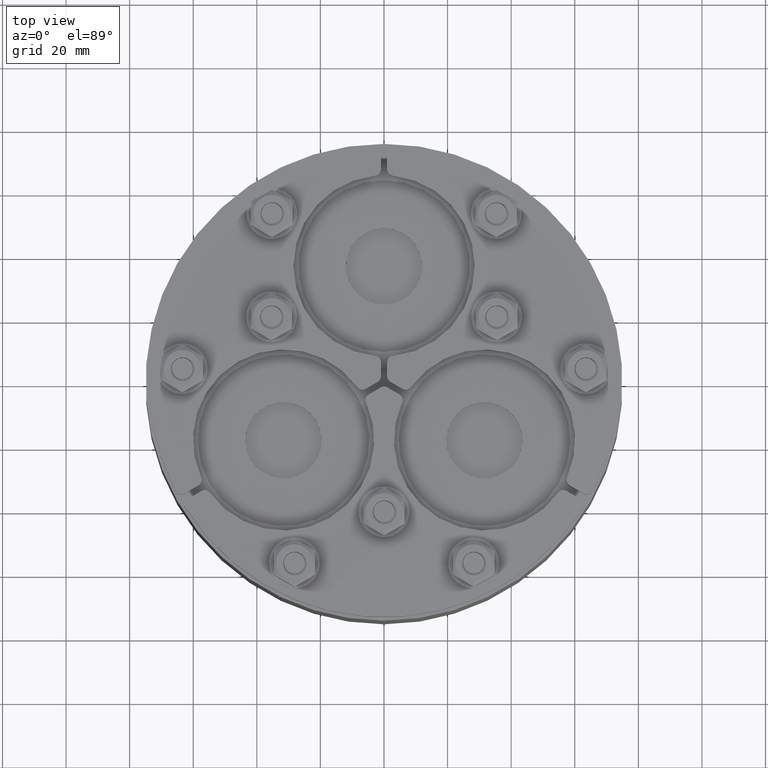
[diagram: clean part render]
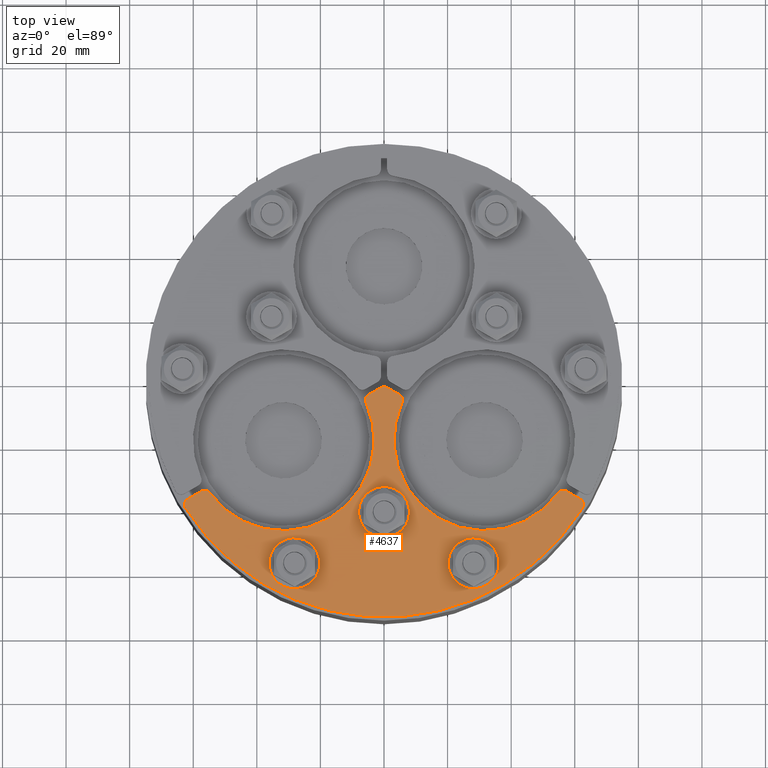
[diagram: same view with one face highlighted and labeled with its STEP entity id]
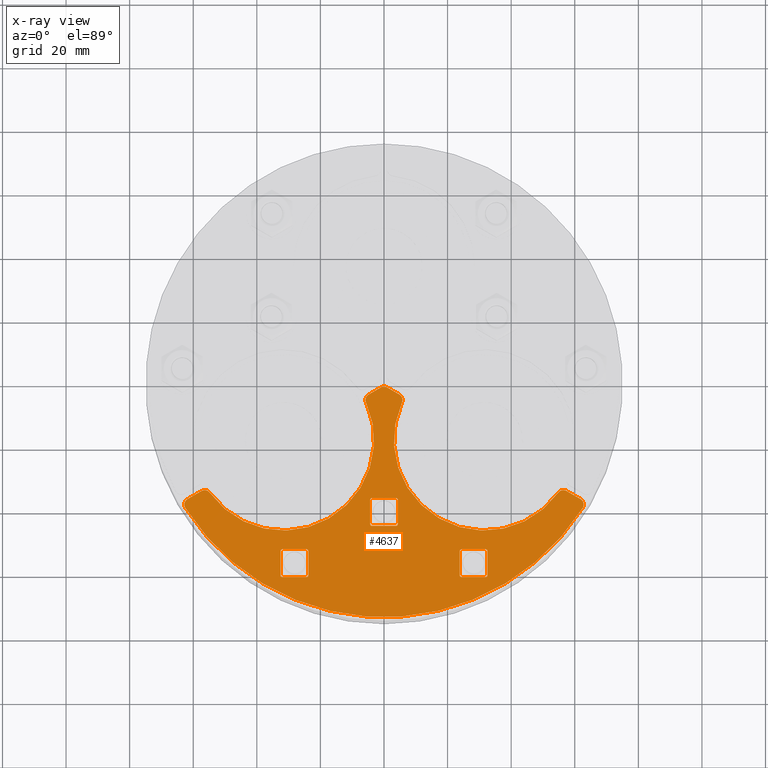
[diagram: x-ray of the same camera — body ghosted, the highlighted face saturated]
A machine part, top view. The second image highlights one B-rep face of the part: STEP entity #4637.
The next image is the same camera in x-ray: the body ghosted, the highlighted face saturated — about 0% of this face is hidden behind the body in this view.
In plain terms, the highlighted planar face has unit normal (0, 0, 1).
Its self-contained STEP definition (entity closure, byte-faithful):
#3328=CARTESIAN_POINT('',(32.029327736417869,-61.366536972386811,5.0));
#3329=VERTEX_POINT('',#3328);
#3336=CARTESIAN_POINT('',(32.529327736417855,-60.866536972386811,5.0));
#3337=VERTEX_POINT('',#3336);
#3338=CARTESIAN_POINT('',(32.029327736417876,-60.866536972386804,5.0));
#3339=DIRECTION('',(0.0,0.0,-1.0));
#3340=DIRECTION('',(0.0,-1.0,0.0));
#3341=AXIS2_PLACEMENT_3D('',#3338,#3339,#3340);
#3342=CIRCLE('',#3341,0.499999999999998);
#3343=EDGE_CURVE('',#3337,#3329,#3342,.T.);
#3368=CARTESIAN_POINT('',(32.529327736417855,-53.166536972386808,5.0));
#3369=VERTEX_POINT('',#3368);
#3370=CARTESIAN_POINT('',(32.529327736417855,-53.166536972386808,5.0));
#3371=DIRECTION('',(0.0,-1.0,0.0));
#3372=VECTOR('',#3371,7.700000000000003);
#3373=LINE('',#3370,#3372);
#3374=EDGE_CURVE('',#3369,#3337,#3373,.T.);
#3400=CARTESIAN_POINT('',(32.029327736417869,-52.666536972386801,5.0));
#3401=VERTEX_POINT('',#3400);
#3402=CARTESIAN_POINT('',(32.029327736417876,-53.166536972386808,5.0));
#3403=DIRECTION('',(0.0,0.0,-1.0));
#3404=DIRECTION('',(1.0,0.0,0.0));
#3405=AXIS2_PLACEMENT_3D('',#3402,#3403,#3404);
#3406=CIRCLE('',#3405,0.499999999999998);
#3407=EDGE_CURVE('',#3401,#3369,#3406,.T.);
#3432=CARTESIAN_POINT('',(24.329327736417849,-52.666536972386808,5.0));
#3433=VERTEX_POINT('',#3432);
#3434=CARTESIAN_POINT('',(24.329327736417852,-52.666536972386808,5.0));
#3435=DIRECTION('',(1.0,0.0,0.0));
#3436=VECTOR('',#3435,7.700000000000017);
#3437=LINE('',#3434,#3436);
#3438=EDGE_CURVE('',#3433,#3401,#3437,.T.);
#3464=CARTESIAN_POINT('',(23.82932773641787,-53.166536972386808,5.0));
#3465=VERTEX_POINT('',#3464);
#3466=CARTESIAN_POINT('',(24.329327736417849,-53.166536972386808,5.0));
#3467=DIRECTION('',(0.0,0.0,-1.0));
#3468=DIRECTION('',(0.0,1.0,0.0));
#3469=AXIS2_PLACEMENT_3D('',#3466,#3467,#3468);
#3470=CIRCLE('',#3469,0.499999999999998);
#3471=EDGE_CURVE('',#3465,#3433,#3470,.T.);
#3496=CARTESIAN_POINT('',(23.829327736417866,-60.866536972386811,5.0));
#3497=VERTEX_POINT('',#3496);
#3498=CARTESIAN_POINT('',(23.829327736417866,-60.866536972386811,5.0));
#3499=DIRECTION('',(0.0,1.0,0.0));
#3500=VECTOR('',#3499,7.700000000000003);
#3501=LINE('',#3498,#3500);
#3502=EDGE_CURVE('',#3497,#3465,#3501,.T.);
#3528=CARTESIAN_POINT('',(24.329327736417849,-61.366536972386797,5.0));
#3529=VERTEX_POINT('',#3528);
#3530=CARTESIAN_POINT('',(24.329327736417845,-60.866536972386797,5.0));
#3531=DIRECTION('',(0.0,0.0,-1.0));
#3532=DIRECTION('',(-1.0,0.0,0.0));
#3533=AXIS2_PLACEMENT_3D('',#3530,#3531,#3532);
#3534=CIRCLE('',#3533,0.499999999999998);
#3535=EDGE_CURVE('',#3529,#3497,#3534,.T.);
#3558=CARTESIAN_POINT('',(32.029327736417869,-61.366536972386811,5.0));
#3559=DIRECTION('',(-1.0,0.0,0.0));
#3560=VECTOR('',#3559,7.700000000000021);
#3561=LINE('',#3558,#3560);
#3562=EDGE_CURVE('',#3329,#3529,#3561,.T.);
#3584=CARTESIAN_POINT('',(-32.529327736417784,-60.866536972386818,5.0));
#3585=VERTEX_POINT('',#3584);
#3592=CARTESIAN_POINT('',(-32.029327736417798,-61.366536972386818,5.0));
#3593=VERTEX_POINT('',#3592);
#3594=CARTESIAN_POINT('',(-32.029327736417798,-60.866536972386818,5.0));
#3595=DIRECTION('',(0.0,0.0,-1.0));
#3596=DIRECTION('',(1.0,0.0,0.0));
#3597=AXIS2_PLACEMENT_3D('',#3594,#3595,#3596);
#3598=CIRCLE('',#3597,0.499999999999998);
#3599=EDGE_CURVE('',#3593,#3585,#3598,.T.);
#3624=CARTESIAN_POINT('',(-24.329327736417774,-61.366536972386818,5.0));
#3625=VERTEX_POINT('',#3624);
#3626=CARTESIAN_POINT('',(-24.329327736417774,-61.366536972386818,5.0));
#3627=DIRECTION('',(-1.0,0.0,0.0));
#3628=VECTOR('',#3627,7.700000000000024);
#3629=LINE('',#3626,#3628);
#3630=EDGE_CURVE('',#3625,#3593,#3629,.T.);
#3656=CARTESIAN_POINT('',(-23.829327736417785,-60.866536972386811,5.0));
#3657=VERTEX_POINT('',#3656);
#3658=CARTESIAN_POINT('',(-24.329327736417774,-60.866536972386818,5.0));
#3659=DIRECTION('',(0.0,0.0,-1.0));
#3660=DIRECTION('',(0.0,1.0,0.0));
#3661=AXIS2_PLACEMENT_3D('',#3658,#3659,#3660);
#3662=CIRCLE('',#3661,0.499999999999998);
#3663=EDGE_CURVE('',#3657,#3625,#3662,.T.);
#3688=CARTESIAN_POINT('',(-23.829327736417785,-53.166536972386822,5.0));
#3689=VERTEX_POINT('',#3688);
#3690=CARTESIAN_POINT('',(-23.829327736417785,-53.166536972386822,5.0));
#3691=DIRECTION('',(0.0,-1.0,0.0));
#3692=VECTOR('',#3691,7.699999999999989);
#3693=LINE('',#3690,#3692);
#3694=EDGE_CURVE('',#3689,#3657,#3693,.T.);
#3720=CARTESIAN_POINT('',(-24.329327736417774,-52.666536972386837,5.0));
#3721=VERTEX_POINT('',#3720);
#3722=CARTESIAN_POINT('',(-24.329327736417774,-53.166536972386822,5.0));
#3723=DIRECTION('',(0.0,0.0,-1.0));
#3724=DIRECTION('',(-1.0,0.0,0.0));
#3725=AXIS2_PLACEMENT_3D('',#3722,#3723,#3724);
#3726=CIRCLE('',#3725,0.499999999999998);
#3727=EDGE_CURVE('',#3721,#3689,#3726,.T.);
#3752=CARTESIAN_POINT('',(-32.029327736417798,-52.666536972386822,5.0));
#3753=VERTEX_POINT('',#3752);
#3754=CARTESIAN_POINT('',(-32.029327736417798,-52.666536972386822,5.0));
#3755=DIRECTION('',(1.0,0.0,0.0));
#3756=VECTOR('',#3755,7.700000000000024);
#3757=LINE('',#3754,#3756);
#3758=EDGE_CURVE('',#3753,#3721,#3757,.T.);
#3784=CARTESIAN_POINT('',(-32.529327736417784,-53.166536972386815,5.0));
#3785=VERTEX_POINT('',#3784);
#3786=CARTESIAN_POINT('',(-32.029327736417791,-53.166536972386815,5.0));
#3787=DIRECTION('',(0.0,0.0,-1.0));
#3788=DIRECTION('',(0.0,-1.0,0.0));
#3789=AXIS2_PLACEMENT_3D('',#3786,#3787,#3788);
#3790=CIRCLE('',#3789,0.499999999999998);
#3791=EDGE_CURVE('',#3785,#3753,#3790,.T.);
#3814=CARTESIAN_POINT('',(-32.529327736417791,-60.866536972386818,5.0));
#3815=DIRECTION('',(0.0,1.0,0.0));
#3816=VECTOR('',#3815,7.700000000000003);
#3817=LINE('',#3814,#3816);
#3818=EDGE_CURVE('',#3585,#3785,#3817,.T.);
#3840=CARTESIAN_POINT('',(3.850000000000041,-45.249999999999986,5.0));
#3841=VERTEX_POINT('',#3840);
#3848=CARTESIAN_POINT('',(4.35000000000003,-44.75,5.0));
#3849=VERTEX_POINT('',#3848);
#3850=CARTESIAN_POINT('',(3.850000000000041,-44.749999999999979,5.0));
#3851=DIRECTION('',(0.0,0.0,-1.0));
#3852=DIRECTION('',(0.0,-1.0,0.0));
#3853=AXIS2_PLACEMENT_3D('',#3850,#3851,#3852);
#3854=CIRCLE('',#3853,0.499999999999998);
#3855=EDGE_CURVE('',#3849,#3841,#3854,.T.);
#3880=CARTESIAN_POINT('',(4.350000000000028,-37.04999999999999,5.0));
#3881=VERTEX_POINT('',#3880);
#3882=CARTESIAN_POINT('',(4.350000000000029,-37.049999999999997,5.0));
#3883=DIRECTION('',(0.0,-1.0,0.0));
#3884=VECTOR('',#3883,7.700000000000003);
#3885=LINE('',#3882,#3884);
#3886=EDGE_CURVE('',#3881,#3849,#3885,.T.);
#3912=CARTESIAN_POINT('',(3.850000000000038,-36.54999999999999,5.0));
#3913=VERTEX_POINT('',#3912);
#3914=CARTESIAN_POINT('',(3.850000000000039,-37.04999999999999,5.0));
#3915=DIRECTION('',(0.0,0.0,-1.0));
#3916=DIRECTION('',(1.0,0.0,0.0));
#3917=AXIS2_PLACEMENT_3D('',#3914,#3915,#3916);
#3918=CIRCLE('',#3917,0.499999999999998);
#3919=EDGE_CURVE('',#3913,#3881,#3918,.T.);
#3944=CARTESIAN_POINT('',(-3.849999999999981,-36.549999999999997,5.0));
#3945=VERTEX_POINT('',#3944);
#3946=CARTESIAN_POINT('',(-3.849999999999981,-36.54999999999999,5.0));
#3947=DIRECTION('',(1.0,0.0,0.0));
#3948=VECTOR('',#3947,7.70000000000002);
#3949=LINE('',#3946,#3948);
#3950=EDGE_CURVE('',#3945,#3913,#3949,.T.);
#3976=CARTESIAN_POINT('',(-4.349999999999962,-37.04999999999999,5.0));
#3977=VERTEX_POINT('',#3976);
#3978=CARTESIAN_POINT('',(-3.849999999999973,-37.04999999999999,5.0));
#3979=DIRECTION('',(0.0,0.0,-1.0));
#3980=DIRECTION('',(0.0,1.0,0.0));
#3981=AXIS2_PLACEMENT_3D('',#3978,#3979,#3980);
#3982=CIRCLE('',#3981,0.499999999999998);
#3983=EDGE_CURVE('',#3977,#3945,#3982,.T.);
#4008=CARTESIAN_POINT('',(-4.349999999999968,-44.75,5.0));
#4009=VERTEX_POINT('',#4008);
#4010=CARTESIAN_POINT('',(-4.349999999999968,-44.75,5.0));
#4011=DIRECTION('',(0.0,1.0,0.0));
#4012=VECTOR('',#4011,7.70000000000001);
#4013=LINE('',#4010,#4012);
#4014=EDGE_CURVE('',#4009,#3977,#4013,.T.);
#4040=CARTESIAN_POINT('',(-3.849999999999978,-45.249999999999986,5.0));
#4041=VERTEX_POINT('',#4040);
#4042=CARTESIAN_POINT('',(-3.849999999999978,-44.749999999999979,5.0));
#4043=DIRECTION('',(0.0,0.0,-1.0));
#4044=DIRECTION('',(-1.0,0.0,0.0));
#4045=AXIS2_PLACEMENT_3D('',#4042,#4043,#4044);
#4046=CIRCLE('',#4045,0.499999999999998);
#4047=EDGE_CURVE('',#4041,#4009,#4046,.T.);
#4070=CARTESIAN_POINT('',(3.850000000000041,-45.249999999999986,5.0));
#4071=DIRECTION('',(-1.0,0.0,0.0));
#4072=VECTOR('',#4071,7.700000000000018);
#4073=LINE('',#4070,#4072);
#4074=EDGE_CURVE('',#3841,#4041,#4073,.T.);
#4085=CARTESIAN_POINT('',(61.799678971885612,-36.834761828629759,5.0));
#4086=VERTEX_POINT('',#4085);
#4087=CARTESIAN_POINT('',(62.488558943326886,-39.638112987204153,5.0));
#4088=VERTEX_POINT('',#4087);
#4089=CARTESIAN_POINT('',(60.799678971885612,-38.566812636198634,5.0));
#4090=DIRECTION('',(0.0,0.0,-1.0));
#4091=DIRECTION('',(0.971109327621586,0.238635022170575,0.0));
#4092=AXIS2_PLACEMENT_3D('',#4089,#4090,#4091);
#4093=CIRCLE('',#4092,2.0);
#4094=EDGE_CURVE('',#4086,#4088,#4093,.T.);
#4136=CARTESIAN_POINT('',(57.395617261412625,-34.292075614560467,5.0));
#4137=VERTEX_POINT('',#4136);
#4144=CARTESIAN_POINT('',(61.799678971885612,-36.834761828629759,5.0));
#4145=DIRECTION('',(-0.866025403784439,0.5,0.0));
#4146=VECTOR('',#4145,5.085372428138598);
#4147=LINE('',#4144,#4146);
#4148=EDGE_CURVE('',#4086,#4137,#4147,.T.);
#4301=CARTESIAN_POINT('',(54.770326112345046,-34.858609935432327,5.0));
#4302=VERTEX_POINT('',#4301);
#4303=CARTESIAN_POINT('',(56.395617261412632,-36.024126422129335,5.0));
#4304=DIRECTION('',(0.0,0.0,-1.0));
#4305=DIRECTION('',(-0.210942847388223,0.977498396487559,0.0));
#4306=AXIS2_PLACEMENT_3D('',#4303,#4304,#4305);
#4307=CIRCLE('',#4306,2.0);
#4308=EDGE_CURVE('',#4302,#4137,#4307,.T.);
#4328=CARTESIAN_POINT('',(5.646249675394137,-6.496811180867043,5.0));
#4329=VERTEX_POINT('',#4328);
#4336=CARTESIAN_POINT('',(31.609927238131878,-18.249999999999858,5.0));
#4337=DIRECTION('',(0.0,0.0,-1.0));
#4338=DIRECTION('',(0.883035996508746,-0.469305261924268,0.0));
#4339=AXIS2_PLACEMENT_3D('',#4336,#4337,#4338);
#4340=CIRCLE('',#4339,28.5);
#4341=EDGE_CURVE('',#4302,#4329,#4340,.T.);
#4351=CARTESIAN_POINT('',(4.824237214851133,-3.939975193008134,5.0));
#4352=VERTEX_POINT('',#4351);
#4353=CARTESIAN_POINT('',(3.824237214851132,-5.67202600057702,5.0));
#4354=DIRECTION('',(0.0,0.0,-1.0));
#4355=DIRECTION('',(0.95200986721089,0.306067333658959,0.0));
#4356=AXIS2_PLACEMENT_3D('',#4353,#4354,#4355);
#4357=CIRCLE('',#4356,2.0);
#4358=EDGE_CURVE('',#4352,#4329,#4357,.T.);
#4378=CARTESIAN_POINT('',(1.000000000000025,-1.732050807568867,5.0));
#4379=VERTEX_POINT('',#4378);
#4386=CARTESIAN_POINT('',(4.824237214851133,-3.939975193008134,5.0));
#4387=DIRECTION('',(-0.866025403784439,0.499999999999999,0.0));
#4388=VECTOR('',#4387,4.415848770878543);
#4389=LINE('',#4386,#4388);
#4390=EDGE_CURVE('',#4352,#4379,#4389,.T.);
#4400=CARTESIAN_POINT('',(-0.999999999999974,-1.732050807568868,5.0));
#4401=VERTEX_POINT('',#4400);
#4402=CARTESIAN_POINT('',(2.609024E-014,-3.464101615137746,5.0));
#4403=DIRECTION('',(0.0,0.0,-1.0));
#4404=DIRECTION('',(0.0,1.0,0.0));
#4405=AXIS2_PLACEMENT_3D('',#4402,#4403,#4404);
#4406=CIRCLE('',#4405,2.0);
#4407=EDGE_CURVE('',#4401,#4379,#4406,.T.);
#4427=CARTESIAN_POINT('',(-4.824237214851237,-3.939975193008229,5.0));
#4428=VERTEX_POINT('',#4427);
#4435=CARTESIAN_POINT('',(-0.999999999999974,-1.732050807568868,5.0));
#4436=DIRECTION('',(-0.866025403784439,-0.5,0.0));
#4437=VECTOR('',#4436,4.415848770878723);
#4438=LINE('',#4435,#4437);
#4439=EDGE_CURVE('',#4401,#4428,#4438,.T.);
#4449=CARTESIAN_POINT('',(-5.646249675394235,-6.49681118086713,5.0));
#4450=VERTEX_POINT('',#4449);
#4451=CARTESIAN_POINT('',(-3.824237214851238,-5.672026000577106,5.0));
#4452=DIRECTION('',(0.0,0.0,-1.0));
#4453=DIRECTION('',(-0.95200986721089,0.306067333658956,0.0));
#4454=AXIS2_PLACEMENT_3D('',#4451,#4452,#4453);
#4455=CIRCLE('',#4454,2.0);
#4456=EDGE_CURVE('',#4450,#4428,#4455,.T.);
#4476=CARTESIAN_POINT('',(-54.770326112345131,-34.85860993543244,5.0));
#4477=VERTEX_POINT('',#4476);
#4484=CARTESIAN_POINT('',(-31.609927238131974,-18.249999999999964,5.0));
#4485=DIRECTION('',(0.0,0.0,-1.0));
#4486=DIRECTION('',(0.8479482772105,0.530078974470545,0.0));
#4487=AXIS2_PLACEMENT_3D('',#4484,#4485,#4486);
#4488=CIRCLE('',#4487,28.5);
#4489=EDGE_CURVE('',#4450,#4477,#4488,.T.);
#4499=CARTESIAN_POINT('',(-62.488558943326851,-39.63811298720421,5.0));
#4500=VERTEX_POINT('',#4499);
#4501=CARTESIAN_POINT('',(-61.799678971885569,-36.834761828629809,5.0));
#4502=VERTEX_POINT('',#4501);
#4503=CARTESIAN_POINT('',(-60.799678971885569,-38.566812636198684,5.0));
#4504=DIRECTION('',(0.0,0.0,-1.0));
#4505=DIRECTION('',(-0.971109327621587,0.238635022170572,0.0));
#4506=AXIS2_PLACEMENT_3D('',#4503,#4504,#4505);
#4507=CIRCLE('',#4506,2.0);
#4508=EDGE_CURVE('',#4500,#4502,#4507,.T.);
#4532=CARTESIAN_POINT('',(0.0,0.0,5.0));
#4533=DIRECTION('',(0.0,0.0,1.0));
#4534=DIRECTION('',(-0.859189568782182,-0.51165739015076,0.0));
#4535=AXIS2_PLACEMENT_3D('',#4532,#4533,#4534);
#4536=CIRCLE('',#4535,74.0);
#4537=EDGE_CURVE('',#4500,#4088,#4536,.T.);
#4549=CARTESIAN_POINT('',(-57.39561726141271,-34.292075614560581,5.0));
#4550=VERTEX_POINT('',#4549);
#4551=CARTESIAN_POINT('',(-56.39561726141271,-36.024126422129456,5.0));
#4552=DIRECTION('',(0.0,0.0,-1.0));
#4553=DIRECTION('',(0.210942847388217,0.97749839648756,0.0));
#4554=AXIS2_PLACEMENT_3D('',#4551,#4552,#4553);
#4555=CIRCLE('',#4554,2.0);
#4556=EDGE_CURVE('',#4550,#4477,#4555,.T.);
#4575=CARTESIAN_POINT('',(-57.39561726141271,-34.292075614560581,5.0));
#4576=DIRECTION('',(-0.866025403784439,-0.5,0.0));
#4577=VECTOR('',#4576,5.085372428138459);
#4578=LINE('',#4575,#4577);
#4579=EDGE_CURVE('',#4550,#4502,#4578,.T.);
#4586=CARTESIAN_POINT('',(1.194031E-015,-43.913045007169657,5.0));
#4587=DIRECTION('',(0.0,0.0,1.0));
#4588=DIRECTION('',(1.0,0.0,0.0));
#4589=AXIS2_PLACEMENT_3D('',#4586,#4587,#4588);
#4590=PLANE('',#4589);
#4591=ORIENTED_EDGE('',*,*,#4094,.F.);
#4592=ORIENTED_EDGE('',*,*,#4148,.T.);
#4593=ORIENTED_EDGE('',*,*,#4308,.F.);
#4594=ORIENTED_EDGE('',*,*,#4341,.T.);
#4595=ORIENTED_EDGE('',*,*,#4358,.F.);
#4596=ORIENTED_EDGE('',*,*,#4390,.T.);
#4597=ORIENTED_EDGE('',*,*,#4407,.F.);
#4598=ORIENTED_EDGE('',*,*,#4439,.T.);
#4599=ORIENTED_EDGE('',*,*,#4456,.F.);
#4600=ORIENTED_EDGE('',*,*,#4489,.T.);
#4601=ORIENTED_EDGE('',*,*,#4556,.F.);
#4602=ORIENTED_EDGE('',*,*,#4579,.T.);
#4603=ORIENTED_EDGE('',*,*,#4508,.F.);
#4604=ORIENTED_EDGE('',*,*,#4537,.T.);
#4605=EDGE_LOOP('',(#4591,#4592,#4593,#4594,#4595,#4596,#4597,#4598,#4599,#4600,#4601,#4602,#4603,#4604));
#4606=FACE_OUTER_BOUND('',#4605,.T.);
#4607=ORIENTED_EDGE('',*,*,#3471,.T.);
#4608=ORIENTED_EDGE('',*,*,#3438,.T.);
#4609=ORIENTED_EDGE('',*,*,#3407,.T.);
#4610=ORIENTED_EDGE('',*,*,#3374,.T.);
#4611=ORIENTED_EDGE('',*,*,#3343,.T.);
#4612=ORIENTED_EDGE('',*,*,#3562,.T.);
#4613=ORIENTED_EDGE('',*,*,#3535,.T.);
#4614=ORIENTED_EDGE('',*,*,#3502,.T.);
#4615=EDGE_LOOP('',(#4607,#4608,#4609,#4610,#4611,#4612,#4613,#4614));
#4616=FACE_BOUND('',#4615,.T.);
#4617=ORIENTED_EDGE('',*,*,#3727,.T.);
#4618=ORIENTED_EDGE('',*,*,#3694,.T.);
#4619=ORIENTED_EDGE('',*,*,#3663,.T.);
#4620=ORIENTED_EDGE('',*,*,#3630,.T.);
#4621=ORIENTED_EDGE('',*,*,#3599,.T.);
#4622=ORIENTED_EDGE('',*,*,#3818,.T.);
#4623=ORIENTED_EDGE('',*,*,#3791,.T.);
#4624=ORIENTED_EDGE('',*,*,#3758,.T.);
#4625=EDGE_LOOP('',(#4617,#4618,#4619,#4620,#4621,#4622,#4623,#4624));
#4626=FACE_BOUND('',#4625,.T.);
#4627=ORIENTED_EDGE('',*,*,#3983,.T.);
#4628=ORIENTED_EDGE('',*,*,#3950,.T.);
#4629=ORIENTED_EDGE('',*,*,#3919,.T.);
#4630=ORIENTED_EDGE('',*,*,#3886,.T.);
#4631=ORIENTED_EDGE('',*,*,#3855,.T.);
#4632=ORIENTED_EDGE('',*,*,#4074,.T.);
#4633=ORIENTED_EDGE('',*,*,#4047,.T.);
#4634=ORIENTED_EDGE('',*,*,#4014,.T.);
#4635=EDGE_LOOP('',(#4627,#4628,#4629,#4630,#4631,#4632,#4633,#4634));
#4636=FACE_BOUND('',#4635,.T.);
#4637=ADVANCED_FACE('',(#4606,#4616,#4626,#4636),#4590,.T.);